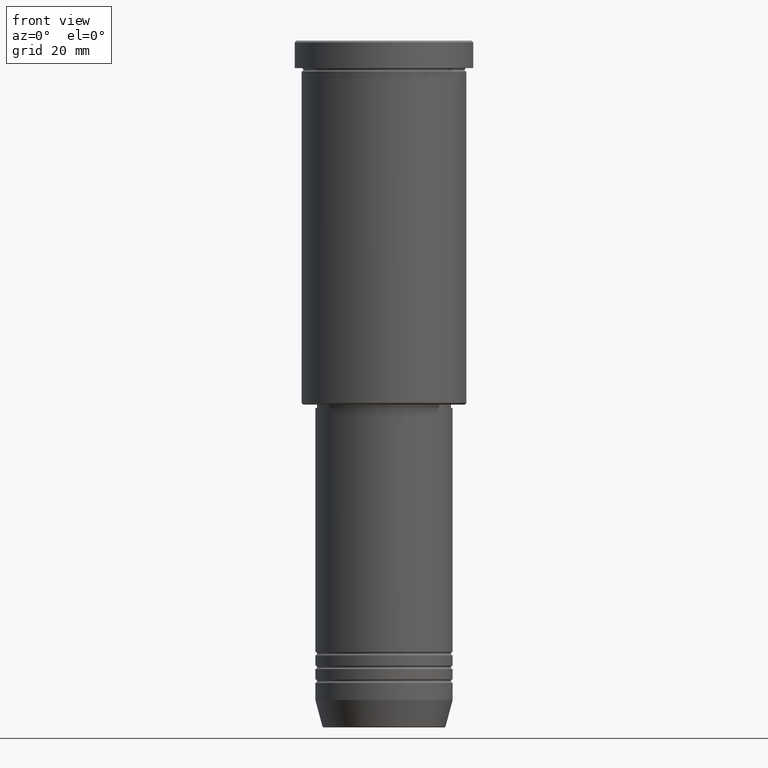
[diagram: clean part render]
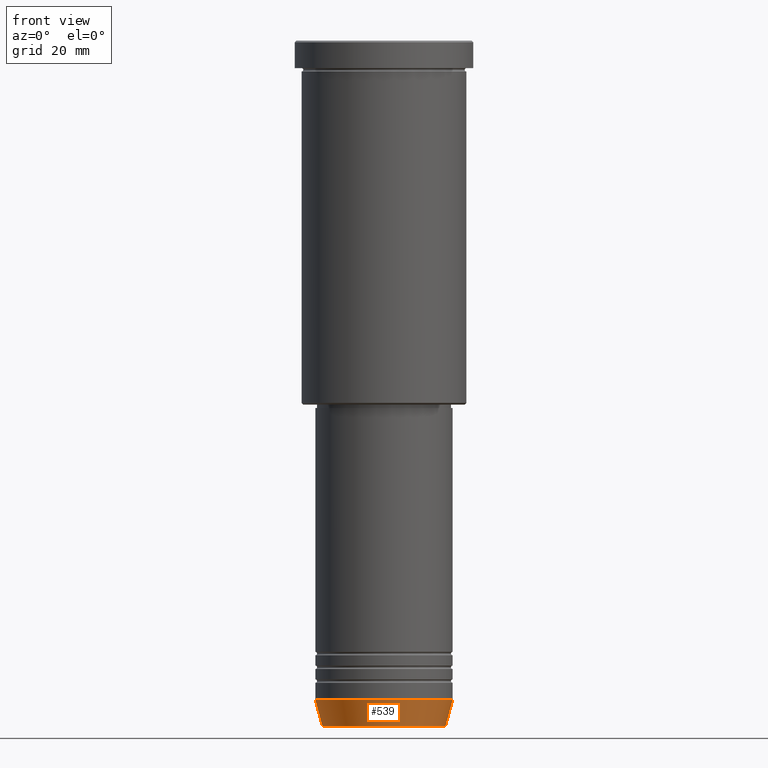
[diagram: same view with one face highlighted and labeled with its STEP entity id]
A machine part, front view. The second image highlights one B-rep face of the part: STEP entity #539.
In plain terms, the highlighted conical surface has half-angle 15 deg.
Its self-contained STEP definition (entity closure, byte-faithful):
#16 = VECTOR ( 'NONE', #709, 1000.000000000000000 ) ;
#91 = ORIENTED_EDGE ( 'NONE', *, *, #612, .F. ) ;
#92 = VERTEX_POINT ( 'NONE', #394 ) ;
#117 = DIRECTION ( 'NONE',  ( -0.000000000000000000, -0.000000000000000000, 1.000000000000000000 ) ) ;
#172 = DIRECTION ( 'NONE',  ( 1.000000000000000000, 0.000000000000000000, 0.000000000000000000 ) ) ;
#203 = CARTESIAN_POINT ( 'NONE',  ( 0.000000000000000000, 0.000000000000000000, -192.0000000000000284 ) ) ;
#240 = VERTEX_POINT ( 'NONE', #400 ) ;
#265 = EDGE_CURVE ( 'NONE', #444, #92, #1058, .T. ) ;
#271 = CIRCLE ( 'NONE', #620, 17.95570587970607690 ) ;
#303 = EDGE_LOOP ( 'NONE', ( #91, #857, #958, #308 ) ) ;
#308 = ORIENTED_EDGE ( 'NONE', *, *, #381, .F. ) ;
#320 = EDGE_CURVE ( 'NONE', #240, #444, #271, .T. ) ;
#333 = LINE ( 'NONE', #514, #16 ) ;
#381 = EDGE_CURVE ( 'NONE', #793, #92, #818, .T. ) ;
#394 = CARTESIAN_POINT ( 'NONE',  ( 20.00000000000000355, 0.000000000000000000, -192.0000000000000284 ) ) ;
#400 = CARTESIAN_POINT ( 'NONE',  ( -17.95570587970607690, 2.324116685748021371E-15, -199.6294095225512990 ) ) ;
#444 = VERTEX_POINT ( 'NONE', #1106 ) ;
#490 = DIRECTION ( 'NONE',  ( 1.000000000000000000, 0.000000000000000000, 0.000000000000000000 ) ) ;
#514 = CARTESIAN_POINT ( 'NONE',  ( -20.00000000000000355, 2.449293598294706907E-15, -192.0000000000000284 ) ) ;
#539 = ADVANCED_FACE ( 'NONE', ( #1125 ), #1176, .T. ) ;
#612 = EDGE_CURVE ( 'NONE', #240, #793, #333, .T. ) ;
#620 = AXIS2_PLACEMENT_3D ( 'NONE', #1003, #638, #172 ) ;
#638 = DIRECTION ( 'NONE',  ( -0.000000000000000000, -0.000000000000000000, 1.000000000000000000 ) ) ;
#658 = CARTESIAN_POINT ( 'NONE',  ( -20.00000000000000355, 2.449293598294706907E-15, -192.0000000000000284 ) ) ;
#670 = CARTESIAN_POINT ( 'NONE',  ( 0.000000000000000000, 0.000000000000000000, -192.0000000000000284 ) ) ;
#709 = DIRECTION ( 'NONE',  ( -0.2588190451025213501, 3.169619151431772337E-17, 0.9659258262890680902 ) ) ;
#782 = VECTOR ( 'NONE', #894, 1000.000000000000000 ) ;
#793 = VERTEX_POINT ( 'NONE', #658 ) ;
#807 = CARTESIAN_POINT ( 'NONE',  ( 20.00000000000000355, 0.000000000000000000, -192.0000000000000284 ) ) ;
#818 = CIRCLE ( 'NONE', #840, 20.00000000000000355 ) ;
#840 = AXIS2_PLACEMENT_3D ( 'NONE', #203, #117, #490 ) ;
#857 = ORIENTED_EDGE ( 'NONE', *, *, #320, .T. ) ;
#861 = DIRECTION ( 'NONE',  ( -0.000000000000000000, -0.000000000000000000, 1.000000000000000000 ) ) ;
#879 = AXIS2_PLACEMENT_3D ( 'NONE', #670, #861, #970 ) ;
#894 = DIRECTION ( 'NONE',  ( 0.2588190451025213501, 0.000000000000000000, 0.9659258262890680902 ) ) ;
#958 = ORIENTED_EDGE ( 'NONE', *, *, #265, .T. ) ;
#970 = DIRECTION ( 'NONE',  ( 1.000000000000000000, 0.000000000000000000, 0.000000000000000000 ) ) ;
#1003 = CARTESIAN_POINT ( 'NONE',  ( 0.000000000000000000, 0.000000000000000000, -199.6294095225512990 ) ) ;
#1058 = LINE ( 'NONE', #807, #782 ) ;
#1106 = CARTESIAN_POINT ( 'NONE',  ( 17.95570587970607690, 0.000000000000000000, -199.6294095225512990 ) ) ;
#1125 = FACE_OUTER_BOUND ( 'NONE', #303, .T. ) ;
#1176 = CONICAL_SURFACE ( 'NONE', #879, 20.00000000000000355, 0.2617993877991500740 ) ;